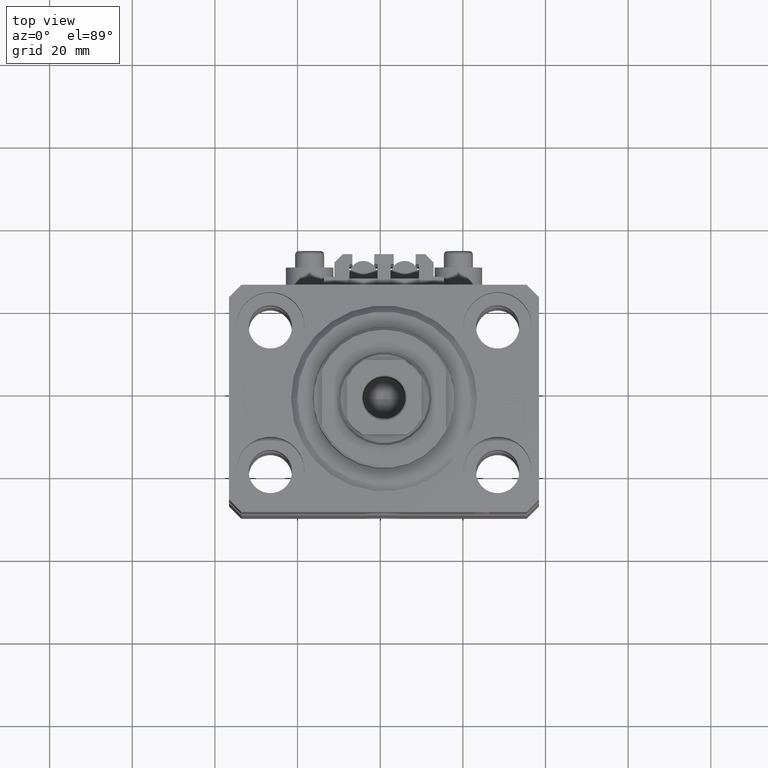
[diagram: clean part render]
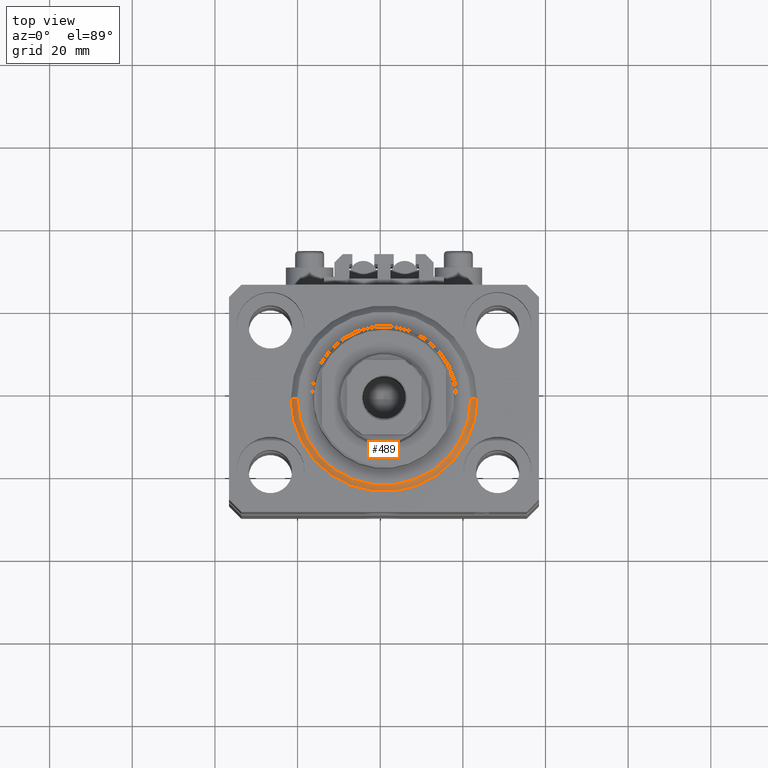
[diagram: same view with one face highlighted and labeled with its STEP entity id]
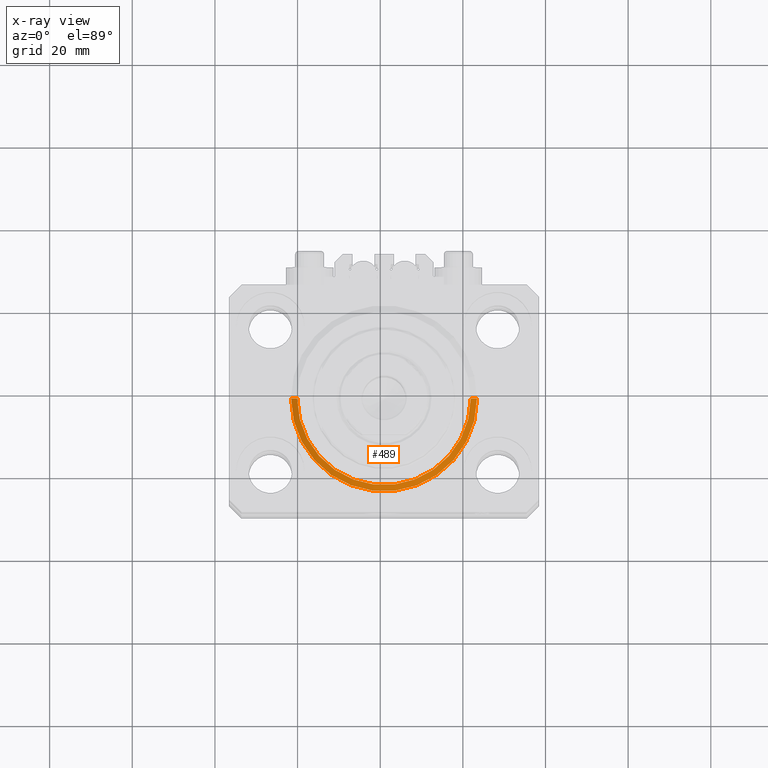
[diagram: x-ray of the same camera — body ghosted, the highlighted face saturated]
A machine part, top view. The second image highlights one B-rep face of the part: STEP entity #489.
The next image is the same camera in x-ray: the body ghosted, the highlighted face saturated — about 0% of this face is hidden behind the body in this view.
In plain terms, the highlighted conical surface has half-angle 45 deg.
Its self-contained STEP definition (entity closure, byte-faithful):
#489 = ADVANCED_FACE ( 'NONE', ( #19920 ), #30748, .T. ) ;
#2589 = EDGE_LOOP ( 'NONE', ( #41928, #34376, #6664, #22056 ) ) ;
#4105 = DIRECTION ( 'NONE',  ( -0.000000000000000000, -0.000000000000000000, 1.000000000000000000 ) ) ;
#4992 = VECTOR ( 'NONE', #18648, 1000.000000000000114 ) ;
#5261 = DIRECTION ( 'NONE',  ( -0.000000000000000000, -0.000000000000000000, -1.000000000000000000 ) ) ;
#6664 = ORIENTED_EDGE ( 'NONE', *, *, #29457, .T. ) ;
#6955 = CIRCLE ( 'NONE', #38048, 20.99999999999998934 ) ;
#11082 = CARTESIAN_POINT ( 'NONE',  ( -22.50000000000000355, 2.755455298081545172E-15, 1.500000000000001332 ) ) ;
#11323 = DIRECTION ( 'NONE',  ( 0.7071067811865500152, 0.000000000000000000, 0.7071067811865451302 ) ) ;
#13136 = CARTESIAN_POINT ( 'NONE',  ( 22.50000000000000355, 2.755455298081545172E-15, 1.500000000000001332 ) ) ;
#16781 = AXIS2_PLACEMENT_3D ( 'NONE', #34795, #20162, #23094 ) ;
#17458 = VECTOR ( 'NONE', #11323, 1000.000000000000114 ) ;
#18648 = DIRECTION ( 'NONE',  ( -0.7071067811865500152, 8.659560562354963673E-17, 0.7071067811865451302 ) ) ;
#19920 = FACE_OUTER_BOUND ( 'NONE', #2589, .T. ) ;
#20162 = DIRECTION ( 'NONE',  ( -0.000000000000000000, -0.000000000000000000, 1.000000000000000000 ) ) ;
#20250 = EDGE_CURVE ( 'NONE', #20527, #36855, #47588, .T. ) ;
#20527 = VERTEX_POINT ( 'NONE', #23469 ) ;
#22056 = ORIENTED_EDGE ( 'NONE', *, *, #20250, .F. ) ;
#22147 = DIRECTION ( 'NONE',  ( 1.000000000000000000, 0.000000000000000000, 0.000000000000000000 ) ) ;
#23094 = DIRECTION ( 'NONE',  ( 1.000000000000000000, 0.000000000000000000, 0.000000000000000000 ) ) ;
#23469 = CARTESIAN_POINT ( 'NONE',  ( -22.50000000000000355, 0.000000000000000000, 1.500000000000001332 ) ) ;
#26047 = CARTESIAN_POINT ( 'NONE',  ( 0.000000000000000000, 0.000000000000000000, 1.500000000000001332 ) ) ;
#28326 = CARTESIAN_POINT ( 'NONE',  ( 20.99999999999998934, 0.000000000000000000, 0.000000000000000000 ) ) ;
#29373 = LINE ( 'NONE', #44700, #17458 ) ;
#29425 = EDGE_CURVE ( 'NONE', #35313, #20527, #46934, .T. ) ;
#29457 = EDGE_CURVE ( 'NONE', #38798, #36855, #29373, .T. ) ;
#30604 = DIRECTION ( 'NONE',  ( 1.000000000000000000, 0.000000000000000000, 0.000000000000000000 ) ) ;
#30748 = CONICAL_SURFACE ( 'NONE', #16781, 22.50000000000000355, 0.7853981633974517207 ) ;
#32340 = CARTESIAN_POINT ( 'NONE',  ( -20.99999999999998934, 2.663606788145492628E-15, 0.000000000000000000 ) ) ;
#34376 = ORIENTED_EDGE ( 'NONE', *, *, #43926, .F. ) ;
#34750 = CARTESIAN_POINT ( 'NONE',  ( 0.000000000000000000, 0.000000000000000000, 0.000000000000000000 ) ) ;
#34795 = CARTESIAN_POINT ( 'NONE',  ( 0.000000000000000000, 0.000000000000000000, 1.500000000000001332 ) ) ;
#35313 = VERTEX_POINT ( 'NONE', #32340 ) ;
#36855 = VERTEX_POINT ( 'NONE', #13136 ) ;
#38048 = AXIS2_PLACEMENT_3D ( 'NONE', #34750, #5261, #30604 ) ;
#38798 = VERTEX_POINT ( 'NONE', #28326 ) ;
#39027 = AXIS2_PLACEMENT_3D ( 'NONE', #26047, #4105, #22147 ) ;
#41928 = ORIENTED_EDGE ( 'NONE', *, *, #29425, .F. ) ;
#43926 = EDGE_CURVE ( 'NONE', #38798, #35313, #6955, .T. ) ;
#44700 = CARTESIAN_POINT ( 'NONE',  ( 22.50000000000000355, 0.000000000000000000, 1.500000000000001332 ) ) ;
#46934 = LINE ( 'NONE', #11082, #4992 ) ;
#47588 = CIRCLE ( 'NONE', #39027, 22.50000000000000355 ) ;